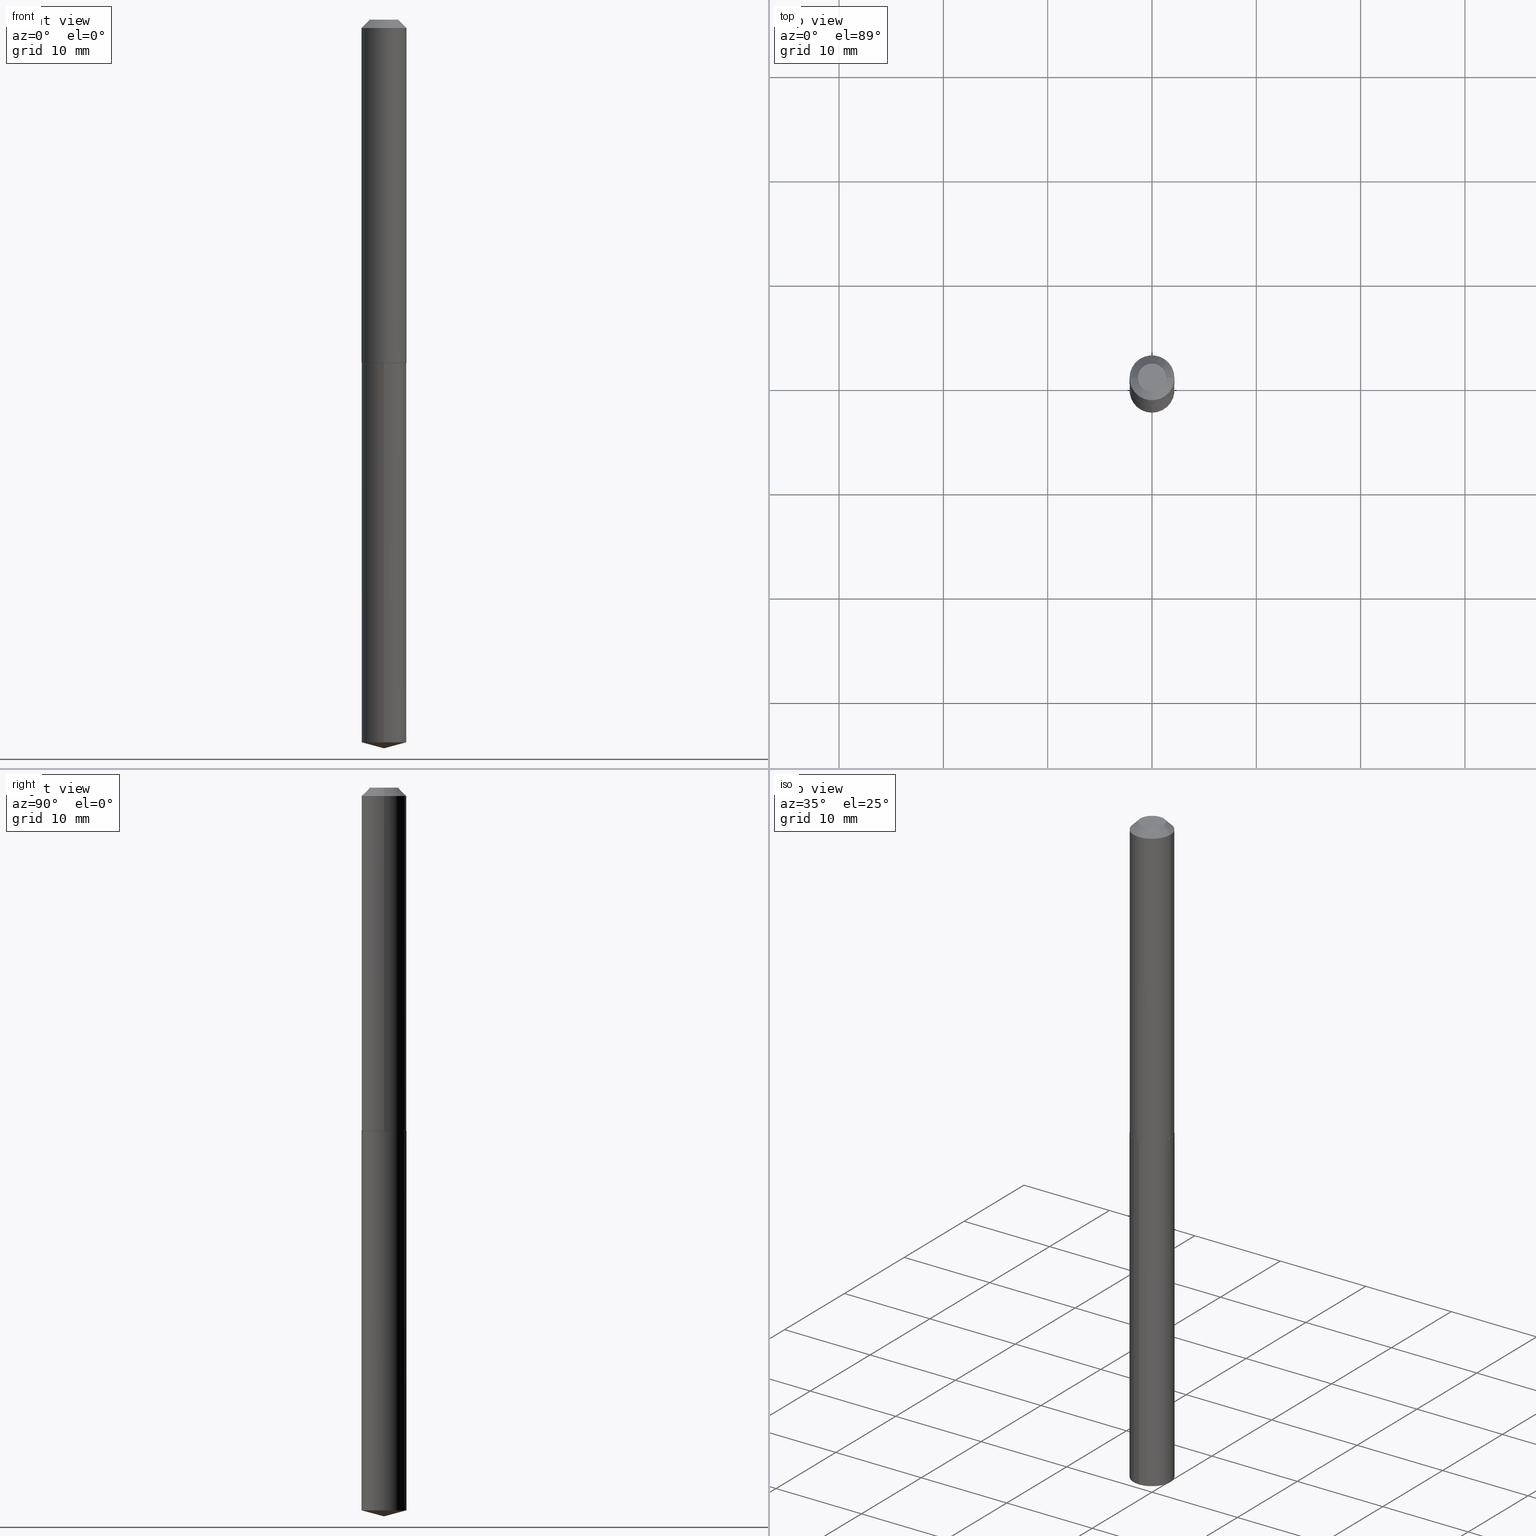
[diagram: canonical four-view strip — front | top / right | iso, engineering-drawing reading convention]
A machine part, canonical four-view strip (front | top / right | iso — engineering-drawing reading convention). The complete STEP part file that produces these views, byte-faithful:
ISO-10303-21;
HEADER;
FILE_DESCRIPTION (( 'STEP AP203' ),
    '1' );
FILE_NAME ('58033.STEP',
    '2024-04-23T00:35:15',
    ( '' ),
    ( '' ),
    'SwSTEP 2.0',
    'SolidWorks 2023',
    '' );
FILE_SCHEMA (( 'CONFIG_CONTROL_DESIGN' ));
ENDSEC;

DATA;
#1 = CC_DESIGN_PERSON_AND_ORGANIZATION_ASSIGNMENT ( #176, #214, ( #147 ) ) ;
#2 = DIRECTION ( 'NONE',  ( -2.445468806185136597E-29, 3.491481338843145583E-15, 1.000000000000000000 ) ) ;
#3 = CARTESIAN_POINT ( 'NONE',  ( 3.165659369606658777E-29, -4.519722593132451811E-15, -1.294499999999999762 ) ) ;
#4 = AXIS2_PLACEMENT_3D ( 'NONE', #139, #242, #87 ) ;
#5 = EDGE_CURVE ( 'NONE', #271, #358, #251, .T. ) ;
#6 = CARTESIAN_POINT ( 'NONE',  ( 0.08475000000000017242, -5.109782939396942105E-15, -1.293999999999999817 ) ) ;
#7 = DIRECTION ( 'NONE',  ( -2.445429915392048284E-29, 3.491537032672374464E-15, 1.000000000000000000 ) ) ;
#8 =( NAMED_UNIT ( * ) SI_UNIT ( $, .STERADIAN. ) SOLID_ANGLE_UNIT ( ) );
#9 = ORIENTED_EDGE ( 'NONE', *, *, #336, .F. ) ;
#10 = MECHANICAL_CONTEXT ( 'NONE', #376, 'mechanical' ) ;
#11 = VECTOR ( 'NONE', #77, 39.37007874015748143 ) ;
#12 = CIRCLE ( 'NONE', #330, 0.08475000000000017242 ) ;
#13 = DIRECTION ( 'NONE',  ( 1.000000000000000000, 0.000000000000000000, 0.000000000000000000 ) ) ;
#14 = AXIS2_PLACEMENT_3D ( 'NONE', #145, #59, #239 ) ;
#15 = CC_DESIGN_PERSON_AND_ORGANIZATION_ASSIGNMENT ( #277, #98, ( #362 ) ) ;
#16 = PERSON_AND_ORGANIZATION ( #373, #51 ) ;
#17 = ORIENTED_EDGE ( 'NONE', *, *, #47, .F. ) ;
#18 = DIRECTION ( 'NONE',  ( 0.000000000000000000, 0.000000000000000000, 1.000000000000000000 ) ) ;
#19 = LINE ( 'NONE', #377, #11 ) ;
#20 = DIMENSIONAL_EXPONENTS ( 1.000000000000000000, 0.000000000000000000, 0.000000000000000000, 0.000000000000000000, 0.000000000000000000, 0.000000000000000000, 0.000000000000000000 ) ;
#21 = ORIENTED_EDGE ( 'NONE', *, *, #183, .F. ) ;
#22 = PLANE ( 'NONE',  #202 ) ;
#23 = CARTESIAN_POINT ( 'NONE',  ( 3.165659369606658777E-29, -4.519722593132451811E-15, -1.294499999999999762 ) ) ;
#24 = AXIS2_PLACEMENT_3D ( 'NONE', #3, #365, #209 ) ;
#25 = ORIENTED_EDGE ( 'NONE', *, *, #217, .T. ) ;
#26 = CARTESIAN_POINT ( 'NONE',  ( 0.08425000000000019973, -5.108037198727519813E-15, -1.294499999999999540 ) ) ;
#27 = VERTEX_POINT ( 'NONE', #212 ) ;
#28 = DIRECTION ( 'NONE',  ( 1.000000000000000000, -6.982962677686266711E-15, 0.000000000000000000 ) ) ;
#29 = CARTESIAN_POINT ( 'NONE',  ( 0.000000000000000000, 0.000000000000000000, 0.000000000000000000 ) ) ;
#30 = CARTESIAN_POINT ( 'NONE',  ( -5.240962205341283824E-48, 7.482705030319651171E-34, 2.143131898507853015E-19 ) ) ;
#31 = ORIENTED_EDGE ( 'NONE', *, *, #366, .F. ) ;
#32 = ORIENTED_EDGE ( 'NONE', *, *, #47, .T. ) ;
#33 = CARTESIAN_POINT ( 'NONE',  ( -5.918060869338440545E-16, -0.08475000000000951217, -2.727291305941462074 ) ) ;
#34 = PLANE ( 'NONE',  #14 ) ;
#35 = MANIFOLD_SOLID_BREP ( 'Body-Move/Copy2[2]', #193 ) ;
#36 = DIRECTION ( 'NONE',  ( -2.445468806185136597E-29, 3.491481338843145583E-15, 1.000000000000000000 ) ) ;
#37 = CIRCLE ( 'NONE', #369, 0.08474999999999999201 ) ;
#38 = APPROVAL_STATUS ( 'not_yet_approved' ) ;
#39 = APPROVAL_ROLE ( '' ) ;
#40 = CARTESIAN_POINT ( 'NONE',  ( 3.164436635203567097E-29, -4.517976852463030307E-15, -1.293999999999999817 ) ) ;
#41 = EDGE_CURVE ( 'NONE', #85, #386, #288, .T. ) ;
#42 = AXIS2_PLACEMENT_3D ( 'NONE', #215, #249, #96 ) ;
#43 = AXIS2_PLACEMENT_3D ( 'NONE', #292, #192, #318 ) ;
#44 = PERSON_AND_ORGANIZATION ( #373, #51 ) ;
#45 = SHAPE_DEFINITION_REPRESENTATION ( #381, #187 ) ;
#46 = DIRECTION ( 'NONE',  ( -6.982962677686265922E-15, -1.000000000000000000, 6.446838923101506686E-15 ) ) ;
#47 = EDGE_CURVE ( 'NONE', #382, #27, #116, .T. ) ;
#48 = ADVANCED_FACE ( 'NONE', ( #322 ), #125, .T. ) ;
#49 = LINE ( 'NONE', #317, #305 ) ;
#50 = VECTOR ( 'NONE', #291, 39.37007874015748143 ) ;
#51 = ORGANIZATION ( 'UNSPECIFIED', 'UNSPECIFIED', '' ) ;
#52 = CYLINDRICAL_SURFACE ( 'NONE', #342, 0.08474999999999999201 ) ;
#53 = DIRECTION ( 'NONE',  ( -2.445468806185136597E-29, 3.491481338843145583E-15, 1.000000000000000000 ) ) ;
#54 = EDGE_LOOP ( 'NONE', ( #235, #108, #107, #169 ) ) ;
#55 = APPROVAL ( #38, 'UNSPECIFIED' ) ;
#56 = ADVANCED_FACE ( 'NONE', ( #357 ), #240, .T. ) ;
#57 = ORIENTED_EDGE ( 'NONE', *, *, #217, .F. ) ;
#58 = EDGE_CURVE ( 'NONE', #161, #271, #329, .T. ) ;
#59 = DIRECTION ( 'NONE',  ( 2.438088387897960049E-29, -3.491481338843145188E-15, -1.000000000000000000 ) ) ;
#60 = EDGE_LOOP ( 'NONE', ( #361, #379, #117, #21 ) ) ;
#61 = FACE_OUTER_BOUND ( 'NONE', #150, .T. ) ;
#62 = DIRECTION ( 'NONE',  ( -2.445429915392048284E-29, 3.491537032672374464E-15, 1.000000000000000000 ) ) ;
#63 = AXIS2_PLACEMENT_3D ( 'NONE', #68, #177, #276 ) ;
#64 = DIRECTION ( 'NONE',  ( 1.000000000000000000, -6.982962677686265922E-15, 4.876188278482911782E-29 ) ) ;
#65 = ORIENTED_EDGE ( 'NONE', *, *, #303, .F. ) ;
#66 = ORIENTED_EDGE ( 'NONE', *, *, #190, .F. ) ;
#67 = EDGE_CURVE ( 'NONE', #271, #88, #231, .T. ) ;
#68 = CARTESIAN_POINT ( 'NONE',  ( 6.669450091669553743E-29, -9.522366497918082470E-15, -2.727291305941462962 ) ) ;
#69 = AXIS2_PLACEMENT_3D ( 'NONE', #179, #73, #310 ) ;
#70 = APPLICATION_PROTOCOL_DEFINITION ( 'international standard', 'config_control_design', 1994, #376 ) ;
#71 = ORIENTED_EDGE ( 'NONE', *, *, #299, .F. ) ;
#72 = APPROVAL_DATE_TIME ( #340, #55 ) ;
#73 = DIRECTION ( 'NONE',  ( 2.445468806185136597E-29, -3.491481338843145583E-15, -1.000000000000000000 ) ) ;
#74 = LOCAL_TIME ( 20, 35, 15.00000000000000000, #218 ) ;
#75 = DATE_AND_TIME ( #341, #337 ) ;
#76 = EDGE_CURVE ( 'NONE', #88, #309, #123, .T. ) ;
#77 = DIRECTION ( 'NONE',  ( 0.7071067811867889352, -2.468850131084785360E-15, 0.7071067811863060992 ) ) ;
#78 = ORIENTED_EDGE ( 'NONE', *, *, #280, .T. ) ;
#79 = CARTESIAN_POINT ( 'NONE',  ( 3.165659369606658217E-29, -4.519722593132450233E-15, -1.294499999999999540 ) ) ;
#80 = VECTOR ( 'NONE', #364, 39.37007874015748854 ) ;
#81 = DIRECTION ( 'NONE',  ( -6.982962677686265922E-15, -1.000000000000000000, 3.223419461550753343E-15 ) ) ;
#82 = EDGE_CURVE ( 'NONE', #258, #265, #375, .T. ) ;
#83 = LINE ( 'NONE', #196, #133 ) ;
#84 = CONICAL_SURFACE ( 'NONE', #42, 0.08474999999999999201, 0.7853981633974450594 ) ;
#85 = VERTEX_POINT ( 'NONE', #205 ) ;
#86 = CYLINDRICAL_SURFACE ( 'NONE', #154, 0.08474999999999999201 ) ;
#87 = DIRECTION ( 'NONE',  ( 1.000000000000000000, -6.982962677686267499E-15, 0.000000000000000000 ) ) ;
#88 = VERTEX_POINT ( 'NONE', #33 ) ;
#89 = FACE_OUTER_BOUND ( 'NONE', #270, .T. ) ;
#90 = DIRECTION ( 'NONE',  ( -2.445468806185136597E-29, 3.491481338843145583E-15, 1.000000000000000000 ) ) ;
#91 = ORIENTED_EDGE ( 'NONE', *, *, #76, .T. ) ;
#92 = DIRECTION ( 'NONE',  ( -6.982962677686265922E-15, -1.000000000000000000, 3.223419461550753343E-15 ) ) ;
#93 = ADVANCED_FACE ( 'NONE', ( #144 ), #273, .F. ) ;
#94 = ORIENTED_EDGE ( 'NONE', *, *, #76, .F. ) ;
#95 =( LENGTH_UNIT ( ) NAMED_UNIT ( * ) SI_UNIT ( $, .METRE. ) );
#96 = DIRECTION ( 'NONE',  ( -1.000000000000000000, 6.982962677686267499E-15, 0.000000000000000000 ) ) ;
#97 = AXIS2_PLACEMENT_3D ( 'NONE', #352, #129, #167 ) ;
#98 = PERSON_AND_ORGANIZATION_ROLE ( 'creator' ) ;
#99 = PERSON_AND_ORGANIZATION_ROLE ( 'classification_officer' ) ;
#100 = DIRECTION ( 'NONE',  ( 1.000000000000000000, -6.982962677686264344E-15, 0.000000000000000000 ) ) ;
#101 = CALENDAR_DATE ( 2024, 22, 4 ) ;
#102 =( GEOMETRIC_REPRESENTATION_CONTEXT ( 3 ) GLOBAL_UNCERTAINTY_ASSIGNED_CONTEXT ( ( #155 ) ) GLOBAL_UNIT_ASSIGNED_CONTEXT ( ( #388, #253, #8 ) ) REPRESENTATION_CONTEXT ( 'NONE', 'WORKASPACE' ) );
#103 = ORIENTED_EDGE ( 'NONE', *, *, #366, .T. ) ;
#104 = VECTOR ( 'NONE', #237, 39.37007874015748143 ) ;
#105 = ADVANCED_FACE ( 'NONE', ( #387 ), #84, .T. ) ;
#106 = CC_DESIGN_SECURITY_CLASSIFICATION ( #131, ( #147 ) ) ;
#107 = ORIENTED_EDGE ( 'NONE', *, *, #183, .T. ) ;
#108 = ORIENTED_EDGE ( 'NONE', *, *, #82, .T. ) ;
#109 = DIRECTION ( 'NONE',  ( -2.445429915392048284E-29, 3.491537032672374464E-15, 1.000000000000000000 ) ) ;
#110 = ADVANCED_FACE ( 'NONE', ( #338 ), #197, .T. ) ;
#111 = ORIENTED_EDGE ( 'NONE', *, *, #67, .T. ) ;
#112 = CARTESIAN_POINT ( 'NONE',  ( 0.08475000000000008915, -5.918060869339116993E-16, 4.132559817487059256E-30 ) ) ;
#113 = APPROVAL_PERSON_ORGANIZATION ( #16, #293, #372 ) ;
#114 = VERTEX_POINT ( 'NONE', #283 ) ;
#115 = DIRECTION ( 'NONE',  ( 1.000000000000000000, -6.982962677686266711E-15, 0.000000000000000000 ) ) ;
#116 = LINE ( 'NONE', #353, #254 ) ;
#117 = ORIENTED_EDGE ( 'NONE', *, *, #120, .F. ) ;
#118 = CARTESIAN_POINT ( 'NONE',  ( 6.021849685567515095E-16, 0.08474999999999043021, -2.727291305941463406 ) ) ;
#119 = ORIENTED_EDGE ( 'NONE', *, *, #120, .T. ) ;
#120 = EDGE_CURVE ( 'NONE', #386, #85, #12, .T. ) ;
#121 = AXIS2_PLACEMENT_3D ( 'NONE', #162, #109, #46 ) ;
#122 = DIRECTION ( 'NONE',  ( -2.445468806185136597E-29, 3.491481338843145583E-15, 1.000000000000000000 ) ) ;
#123 = LINE ( 'NONE', #211, #104 ) ;
#124 = EDGE_CURVE ( 'NONE', #88, #271, #297, .T. ) ;
#125 = CONICAL_SURFACE ( 'NONE', #248, 0.08475000000000017242, 0.7853981633977896726 ) ;
#126 = APPLICATION_PROTOCOL_DEFINITION ( 'international standard', 'config_control_design', 1994, #208 ) ;
#127 = DATE_TIME_ROLE ( 'creation_date' ) ;
#128 = ORIENTED_EDGE ( 'NONE', *, *, #336, .T. ) ;
#129 = DIRECTION ( 'NONE',  ( -2.445468806185136597E-29, 3.491481338843145583E-15, 1.000000000000000000 ) ) ;
#130 = VECTOR ( 'NONE', #7, 39.37007874015748143 ) ;
#131 = SECURITY_CLASSIFICATION ( '', '', #311 ) ;
#132 = VERTEX_POINT ( 'NONE', #225 ) ;
#133 = VECTOR ( 'NONE', #316, 39.37007874015748143 ) ;
#134 = CIRCLE ( 'NONE', #275, 0.05349999999999999895 ) ;
#135 = ORIENTED_EDGE ( 'NONE', *, *, #5, .T. ) ;
#136 = LENGTH_MEASURE_WITH_UNIT ( LENGTH_MEASURE( 0.02539999999999999897 ), #95 );
#137 = DIRECTION ( 'NONE',  ( -2.445429915392048284E-29, 3.491537032672374464E-15, 1.000000000000000000 ) ) ;
#138 = EDGE_LOOP ( 'NONE', ( #181, #320, #290 ) ) ;
#139 = CARTESIAN_POINT ( 'NONE',  ( 7.642090019328600035E-31, -1.091087918388489897E-16, -0.03125000000000020123 ) ) ;
#140 = CARTESIAN_POINT ( 'NONE',  ( 6.725033838508654818E-29, -9.601582648525155543E-15, -2.750000000000000000 ) ) ;
#141 = CARTESIAN_POINT ( 'NONE',  ( 3.165659369606658217E-29, -4.519722593132450233E-15, -1.294499999999999540 ) ) ;
#142 = CC_DESIGN_DATE_AND_TIME_ASSIGNMENT ( #368, #127, ( #362 ) ) ;
#143 = CARTESIAN_POINT ( 'NONE',  ( -5.918060869338793560E-16, -0.08475000000000451617, -1.294499999999999540 ) ) ;
#144 = FACE_OUTER_BOUND ( 'NONE', #390, .T. ) ;
#145 = CARTESIAN_POINT ( 'NONE',  ( -2.620481102670641912E-48, 3.741352515159825585E-34, 1.071565949253926508E-19 ) ) ;
#146 = CLOSED_SHELL ( 'NONE', ( #175, #221, #191, #268, #93 ) ) ;
#147 = PRODUCT_DEFINITION_FORMATION_WITH_SPECIFIED_SOURCE ( 'ANY', '', #284, .NOT_KNOWN. ) ;
#148 = EDGE_CURVE ( 'NONE', #161, #88, #49, .T. ) ;
#149 = CALENDAR_DATE ( 2024, 22, 4 ) ;
#150 = EDGE_LOOP ( 'NONE', ( #333, #111, #91, #164 ) ) ;
#151 = DATE_AND_TIME ( #101, #165 ) ;
#152 = DIRECTION ( 'NONE',  ( -2.445468806185136597E-29, 3.491481338843145583E-15, 1.000000000000000000 ) ) ;
#153 = PERSON_AND_ORGANIZATION ( #373, #51 ) ;
#154 = AXIS2_PLACEMENT_3D ( 'NONE', #302, #62, #92 ) ;
#155 = UNCERTAINTY_MEASURE_WITH_UNIT (LENGTH_MEASURE( 1.000000000000000082E-05 ), #388, 'distance_accuracy_value', 'NONE');
#156 = DATE_AND_TIME ( #149, #306 ) ;
#157 = CARTESIAN_POINT ( 'NONE',  ( -0.08425000000000019973, -3.918441111080454291E-15, -1.294499999999999540 ) ) ;
#158 = AXIS2_PLACEMENT_3D ( 'NONE', #346, #189, #256 ) ;
#159 = APPROVAL_PERSON_ORGANIZATION ( #44, #55, #334 ) ;
#160 = LINE ( 'NONE', #195, #50 ) ;
#161 = VERTEX_POINT ( 'NONE', #260 ) ;
#162 = CARTESIAN_POINT ( 'NONE',  ( 6.669450091669553743E-29, -9.522366497918082470E-15, -2.727291305941462962 ) ) ;
#163 = DIRECTION ( 'NONE',  ( 1.000000000000000000, -6.982962677686264344E-15, 0.000000000000000000 ) ) ;
#164 = ORIENTED_EDGE ( 'NONE', *, *, #363, .F. ) ;
#165 = LOCAL_TIME ( 20, 35, 15.00000000000000000, #367 ) ;
#166 = ORIENTED_EDGE ( 'NONE', *, *, #335, .T. ) ;
#167 = DIRECTION ( 'NONE',  ( 1.000000000000000000, -6.982962677686264344E-15, 0.000000000000000000 ) ) ;
#168 = DIRECTION ( 'NONE',  ( 0.7071067811865452413, -7.319954787623248157E-15, -0.7071067811865497932 ) ) ;
#169 = ORIENTED_EDGE ( 'NONE', *, *, #41, .F. ) ;
#170 = AXIS2_PLACEMENT_3D ( 'NONE', #360, #90, #201 ) ;
#171 = DIRECTION ( 'NONE',  ( -2.445468806185136597E-29, 3.491481338843145583E-15, 1.000000000000000000 ) ) ;
#172 = CARTESIAN_POINT ( 'NONE',  ( 3.164436635203567097E-29, -4.517976852463030307E-15, -1.293999999999999817 ) ) ;
#173 = CIRCLE ( 'NONE', #198, 0.05349999999999999895 ) ;
#174 = LINE ( 'NONE', #112, #257 ) ;
#175 = ADVANCED_FACE ( 'NONE', ( #348 ), #52, .T. ) ;
#176 = PERSON_AND_ORGANIZATION ( #373, #51 ) ;
#177 = DIRECTION ( 'NONE',  ( -2.445429915392048284E-29, 3.491537032672374464E-15, 1.000000000000000000 ) ) ;
#178 = AXIS2_PLACEMENT_3D ( 'NONE', #23, #385, #81 ) ;
#179 = CARTESIAN_POINT ( 'NONE',  ( 7.642090019328600035E-31, -1.091087918388489897E-16, -0.03125000000000020123 ) ) ;
#180 = PERSON_AND_ORGANIZATION_ROLE ( 'creator' ) ;
#181 = ORIENTED_EDGE ( 'NONE', *, *, #58, .F. ) ;
#182 = APPROVAL_STATUS ( 'not_yet_approved' ) ;
#183 = EDGE_CURVE ( 'NONE', #265, #386, #19, .T. ) ;
#184 = ADVANCED_FACE ( 'NONE', ( #289 ), #22, .F. ) ;
#185 = COORDINATED_UNIVERSAL_TIME_OFFSET ( 5, 0, .BEHIND. ) ;
#186 = CARTESIAN_POINT ( 'NONE',  ( 3.165659369606658777E-29, -4.519722593132451811E-15, -1.294499999999999762 ) ) ;
#187 = ADVANCED_BREP_SHAPE_REPRESENTATION ( '58033', ( #286, #35, #326 ), #102 ) ;
#188 = ORIENTED_EDGE ( 'NONE', *, *, #82, .F. ) ;
#189 = DIRECTION ( 'NONE',  ( -2.445429915392048284E-29, 3.491537032672374464E-15, 1.000000000000000000 ) ) ;
#190 = EDGE_CURVE ( 'NONE', #309, #358, #354, .T. ) ;
#191 = ADVANCED_FACE ( 'NONE', ( #226 ), #313, .T. ) ;
#192 = DIRECTION ( 'NONE',  ( -2.445429915392048284E-29, 3.491537032672374464E-15, 1.000000000000000000 ) ) ;
#193 = CLOSED_SHELL ( 'NONE', ( #105, #56, #267, #184, #48, #378, #110, #325 ) ) ;
#194 = CIRCLE ( 'NONE', #383, 0.08474999999999999201 ) ;
#195 = CARTESIAN_POINT ( 'NONE',  ( -0.08475000000000008915, 6.021849685566855410E-16, -4.168797488991036477E-30 ) ) ;
#196 = CARTESIAN_POINT ( 'NONE',  ( -0.08475000000000017242, -3.915791883906343879E-15, -1.293999999999999817 ) ) ;
#197 = CONICAL_SURFACE ( 'NONE', #69, 0.08474999999999999201, 0.7853981633974450594 ) ;
#198 = AXIS2_PLACEMENT_3D ( 'NONE', #274, #301, #300 ) ;
#199 = CYLINDRICAL_SURFACE ( 'NONE', #220, 0.08475000000000008915 ) ;
#200 = LINE ( 'NONE', #327, #232 ) ;
#201 = DIRECTION ( 'NONE',  ( 1.000000000000000000, -6.982962677686266711E-15, 4.876176775795935232E-29 ) ) ;
#202 = AXIS2_PLACEMENT_3D ( 'NONE', #79, #296, #380 ) ;
#203 = DIRECTION ( 'NONE',  ( 1.000000000000000000, -6.982962677686267499E-15, 0.000000000000000000 ) ) ;
#204 = CIRCLE ( 'NONE', #261, 0.08425000000000019973 ) ;
#205 = CARTESIAN_POINT ( 'NONE',  ( -0.08475000000000017242, -3.915791883906343879E-15, -1.293999999999999817 ) ) ;
#206 = CARTESIAN_POINT ( 'NONE',  ( -0.05349999999999999895, 4.281428991756386893E-16, 2.143131898479821105E-19 ) ) ;
#207 = EDGE_LOOP ( 'NONE', ( #219, #389, #32, #78 ) ) ;
#208 = APPLICATION_CONTEXT ( 'configuration controlled 3d designs of mechanical parts and assemblies' ) ;
#209 = DIRECTION ( 'NONE',  ( 6.982962677686265922E-15, 1.000000000000000000, -3.491537032672374464E-15 ) ) ;
#210 = APPROVAL_STATUS ( 'not_yet_approved' ) ;
#211 = CARTESIAN_POINT ( 'NONE',  ( -5.918060869338793560E-16, -0.08475000000000451617, -1.294499999999999540 ) ) ;
#212 = CARTESIAN_POINT ( 'NONE',  ( -0.08474999999999999201, -1.711357853594253473E-15, -0.03125000000000020123 ) ) ;
#213 = CC_DESIGN_APPROVAL ( #55, ( #147 ) ) ;
#214 = PERSON_AND_ORGANIZATION_ROLE ( 'design_supplier' ) ;
#215 = CARTESIAN_POINT ( 'NONE',  ( 7.642090019328600035E-31, -1.091087918388489897E-16, -0.03125000000000020123 ) ) ;
#216 = COORDINATED_UNIVERSAL_TIME_OFFSET ( 5, 0, .BEHIND. ) ;
#217 = EDGE_CURVE ( 'NONE', #85, #27, #160, .T. ) ;
#218 = COORDINATED_UNIVERSAL_TIME_OFFSET ( 5, 0, .BEHIND. ) ;
#219 = ORIENTED_EDGE ( 'NONE', *, *, #294, .F. ) ;
#220 = AXIS2_PLACEMENT_3D ( 'NONE', #29, #2, #356 ) ;
#221 = ADVANCED_FACE ( 'NONE', ( #321 ), #331, .T. ) ;
#222 = ORIENTED_EDGE ( 'NONE', *, *, #190, .T. ) ;
#223 = DIRECTION ( 'NONE',  ( -6.745023994389847021E-15, -0.9659258262890687563, 0.2588190451025186856 ) ) ;
#224 = DIRECTION ( 'NONE',  ( -2.445429915392048284E-29, 3.491537032672374464E-15, 1.000000000000000000 ) ) ;
#225 = CARTESIAN_POINT ( 'NONE',  ( 0.08474999999999999201, -7.009148787727601097E-16, -0.03125000000000020123 ) ) ;
#226 = FACE_OUTER_BOUND ( 'NONE', #138, .T. ) ;
#227 = CC_DESIGN_PERSON_AND_ORGANIZATION_ASSIGNMENT ( #374, #180, ( #147 ) ) ;
#228 = ORIENTED_EDGE ( 'NONE', *, *, #299, .T. ) ;
#229 = FACE_OUTER_BOUND ( 'NONE', #60, .T. ) ;
#230 = EDGE_LOOP ( 'NONE', ( #259, #135, #66, #94 ) ) ;
#231 = CIRCLE ( 'NONE', #63, 0.08474999999999999201 ) ;
#232 = VECTOR ( 'NONE', #168, 39.37007874015748143 ) ;
#233 = DIRECTION ( 'NONE',  ( -2.445468806185136597E-29, 3.491481338843145583E-15, 1.000000000000000000 ) ) ;
#234 = DIRECTION ( 'NONE',  ( -0.7071067811865452413, 2.468850131082233000E-15, -0.7071067811865497932 ) ) ;
#235 = ORIENTED_EDGE ( 'NONE', *, *, #236, .F. ) ;
#236 = EDGE_CURVE ( 'NONE', #258, #85, #83, .T. ) ;
#237 = DIRECTION ( 'NONE',  ( -2.445429915392048284E-29, 3.491537032672374464E-15, 1.000000000000000000 ) ) ;
#238 = CC_DESIGN_PERSON_AND_ORGANIZATION_ASSIGNMENT ( #153, #287, ( #284 ) ) ;
#239 = DIRECTION ( 'NONE',  ( -1.000000000000000000, 6.982962677686265922E-15, -4.876176775795935793E-29 ) ) ;
#240 = CYLINDRICAL_SURFACE ( 'NONE', #170, 0.08475000000000008915 ) ;
#241 = ORIENTED_EDGE ( 'NONE', *, *, #124, .F. ) ;
#242 = DIRECTION ( 'NONE',  ( -2.445468806185136597E-29, 3.491481338843145583E-15, 1.000000000000000000 ) ) ;
#243 = DIRECTION ( 'NONE',  ( -2.445468806185136597E-29, 3.491481338843145583E-15, 1.000000000000000000 ) ) ;
#244 = CARTESIAN_POINT ( 'NONE',  ( 7.642090019328600035E-31, -1.091087918388489897E-16, -0.03125000000000020123 ) ) ;
#245 = CIRCLE ( 'NONE', #4, 0.08474999999999999201 ) ;
#246 = EDGE_LOOP ( 'NONE', ( #166, #128 ) ) ;
#247 = APPROVAL_DATE_TIME ( #151, #308 ) ;
#248 = AXIS2_PLACEMENT_3D ( 'NONE', #172, #53, #163 ) ;
#249 = DIRECTION ( 'NONE',  ( 2.445468806185136597E-29, -3.491481338843145583E-15, -1.000000000000000000 ) ) ;
#250 = COORDINATED_UNIVERSAL_TIME_OFFSET ( 5, 0, .BEHIND. ) ;
#251 = LINE ( 'NONE', #371, #130 ) ;
#252 = CARTESIAN_POINT ( 'NONE',  ( 3.164436635203567097E-29, -4.517976852463030307E-15, -1.293999999999999817 ) ) ;
#253 =( NAMED_UNIT ( * ) PLANE_ANGLE_UNIT ( ) SI_UNIT ( $, .RADIAN. ) );
#254 = VECTOR ( 'NONE', #234, 39.37007874015748143 ) ;
#255 = ORIENTED_EDGE ( 'NONE', *, *, #148, .F. ) ;
#256 = DIRECTION ( 'NONE',  ( -6.982962677686265922E-15, -1.000000000000000000, 3.510303681827561547E-15 ) ) ;
#257 = VECTOR ( 'NONE', #272, 39.37007874015748143 ) ;
#258 = VERTEX_POINT ( 'NONE', #157 ) ;
#259 = ORIENTED_EDGE ( 'NONE', *, *, #124, .T. ) ;
#260 = CARTESIAN_POINT ( 'NONE',  ( 6.724932267328132149E-29, -9.601726839849029086E-15, -2.750000000000000000 ) ) ;
#261 = AXIS2_PLACEMENT_3D ( 'NONE', #332, #233, #115 ) ;
#262 = PRODUCT_RELATED_PRODUCT_CATEGORY ( 'detail', '', ( #284 ) ) ;
#263 = EDGE_LOOP ( 'NONE', ( #119, #25, #71, #31 ) ) ;
#264 = DIRECTION ( 'NONE',  ( -6.982962677686265922E-15, -1.000000000000000000, 3.223419461550753343E-15 ) ) ;
#265 = VERTEX_POINT ( 'NONE', #26 ) ;
#266 = CARTESIAN_POINT ( 'NONE',  ( 3.165659369606658777E-29, -4.519722593132451811E-15, -1.294499999999999762 ) ) ;
#267 = ADVANCED_FACE ( 'NONE', ( #229 ), #343, .T. ) ;
#268 = ADVANCED_FACE ( 'NONE', ( #61 ), #86, .T. ) ;
#269 = DIRECTION ( 'NONE',  ( -6.982962677686265922E-15, -1.000000000000000000, 3.223419461550753343E-15 ) ) ;
#270 = EDGE_LOOP ( 'NONE', ( #57, #384, #103, #295 ) ) ;
#271 = VERTEX_POINT ( 'NONE', #118 ) ;
#272 = DIRECTION ( 'NONE',  ( -2.445468806185136877E-29, 3.491481338843145188E-15, 1.000000000000000000 ) ) ;
#273 = PLANE ( 'NONE',  #24 ) ;
#274 = CARTESIAN_POINT ( 'NONE',  ( -5.240962205341283824E-48, 7.482705030319651171E-34, 2.143131898507853015E-19 ) ) ;
#275 = AXIS2_PLACEMENT_3D ( 'NONE', #30, #122, #64 ) ;
#276 = DIRECTION ( 'NONE',  ( -6.982962677686265922E-15, -1.000000000000000000, 6.446838923101506686E-15 ) ) ;
#277 = PERSON_AND_ORGANIZATION ( #373, #51 ) ;
#278 = DIRECTION ( 'NONE',  ( 1.000000000000000000, -6.982962677686264344E-15, 0.000000000000000000 ) ) ;
#279 = CC_DESIGN_PERSON_AND_ORGANIZATION_ASSIGNMENT ( #370, #99, ( #131 ) ) ;
#280 = EDGE_CURVE ( 'NONE', #27, #132, #245, .T. ) ;
#281 = CALENDAR_DATE ( 2024, 22, 4 ) ;
#282 = AXIS2_PLACEMENT_3D ( 'NONE', #40, #152, #278 ) ;
#283 = CARTESIAN_POINT ( 'NONE',  ( 0.05349999999999999895, -5.287863200153815370E-16, 2.143131898539398544E-19 ) ) ;
#284 = PRODUCT ( '58033', '58033', '', ( #10 ) ) ;
#285 = DATE_TIME_ROLE ( 'classification_date' ) ;
#286 = MANIFOLD_SOLID_BREP ( 'Body-Move/Copy2[1]', #146 ) ;
#287 = PERSON_AND_ORGANIZATION_ROLE ( 'design_owner' ) ;
#288 = CIRCLE ( 'NONE', #282, 0.08475000000000017242 ) ;
#289 = FACE_OUTER_BOUND ( 'NONE', #304, .T. ) ;
#290 = ORIENTED_EDGE ( 'NONE', *, *, #67, .F. ) ;
#291 = DIRECTION ( 'NONE',  ( -2.445468806185136877E-29, 3.491481338843145188E-15, 1.000000000000000000 ) ) ;
#292 = CARTESIAN_POINT ( 'NONE',  ( -8.955178571106180441E-28, 1.278604331563000924E-13, 36.62007874015748143 ) ) ;
#293 = APPROVAL ( #210, 'UNSPECIFIED' ) ;
#294 = EDGE_CURVE ( 'NONE', #114, #132, #200, .T. ) ;
#295 = ORIENTED_EDGE ( 'NONE', *, *, #280, .F. ) ;
#296 = DIRECTION ( 'NONE',  ( -2.438088387897960049E-29, 3.491481338843145188E-15, 1.000000000000000000 ) ) ;
#297 = CIRCLE ( 'NONE', #121, 0.08474999999999999201 ) ;
#298 = DESIGN_CONTEXT ( 'detailed design', #208, 'design' ) ;
#299 = EDGE_CURVE ( 'NONE', #132, #27, #194, .T. ) ;
#300 = DIRECTION ( 'NONE',  ( 1.000000000000000000, -6.982962677686265922E-15, 4.876188278482911782E-29 ) ) ;
#301 = DIRECTION ( 'NONE',  ( -2.445468806185136597E-29, 3.491481338843145583E-15, 1.000000000000000000 ) ) ;
#302 = CARTESIAN_POINT ( 'NONE',  ( 3.165659369606658777E-29, -4.519722593132451811E-15, -1.294499999999999762 ) ) ;
#303 = EDGE_CURVE ( 'NONE', #265, #258, #204, .T. ) ;
#304 = EDGE_LOOP ( 'NONE', ( #65, #188 ) ) ;
#305 = VECTOR ( 'NONE', #223, 39.37007874015748854 ) ;
#306 = LOCAL_TIME ( 20, 35, 15.00000000000000000, #216 ) ;
#307 = CARTESIAN_POINT ( 'NONE',  ( 0.000000000000000000, 0.000000000000000000, 0.000000000000000000 ) ) ;
#308 = APPROVAL ( #182, 'UNSPECIFIED' ) ;
#309 = VERTEX_POINT ( 'NONE', #143 ) ;
#310 = DIRECTION ( 'NONE',  ( -1.000000000000000000, 6.982962677686267499E-15, 0.000000000000000000 ) ) ;
#311 = SECURITY_CLASSIFICATION_LEVEL ( 'unclassified' ) ;
#312 = CALENDAR_DATE ( 2024, 22, 4 ) ;
#313 = CONICAL_SURFACE ( 'NONE', #158, 146.9311341562583095, 1.308996938995752757 ) ;
#314 = LOCAL_TIME ( 20, 35, 15.00000000000000000, #250 ) ;
#315 = APPROVAL_DATE_TIME ( #75, #293 ) ;
#316 = DIRECTION ( 'NONE',  ( -0.7071067811867889352, 7.493145998871226640E-15, 0.7071067811863060992 ) ) ;
#317 = CARTESIAN_POINT ( 'NONE',  ( 6.724932267328133270E-29, -9.601726839849030664E-15, -2.750000000000000000 ) ) ;
#318 = DIRECTION ( 'NONE',  ( -6.982962677686265922E-15, -1.000000000000000000, 3.510303681827561547E-15 ) ) ;
#319 = APPROVAL_PERSON_ORGANIZATION ( #339, #308, #39 ) ;
#320 = ORIENTED_EDGE ( 'NONE', *, *, #148, .T. ) ;
#321 = FACE_OUTER_BOUND ( 'NONE', #350, .T. ) ;
#322 = FACE_OUTER_BOUND ( 'NONE', #54, .T. ) ;
#323 = EDGE_LOOP ( 'NONE', ( #9, #345, #228, #17 ) ) ;
#324 = ORIENTED_EDGE ( 'NONE', *, *, #363, .T. ) ;
#325 = ADVANCED_FACE ( 'NONE', ( #328 ), #34, .F. ) ;
#326 = AXIS2_PLACEMENT_3D ( 'NONE', #307, #18, #13 ) ;
#327 = CARTESIAN_POINT ( 'NONE',  ( 0.08474999999999999201, -6.905359971499861694E-16, -0.03125000000000020123 ) ) ;
#328 = FACE_OUTER_BOUND ( 'NONE', #246, .T. ) ;
#329 = LINE ( 'NONE', #140, #80 ) ;
#330 = AXIS2_PLACEMENT_3D ( 'NONE', #252, #36, #100 ) ;
#331 = CONICAL_SURFACE ( 'NONE', #43, 146.9311341562583095, 1.308996938995752757 ) ;
#332 = CARTESIAN_POINT ( 'NONE',  ( 3.165659369606658217E-29, -4.519722593132450233E-15, -1.294499999999999540 ) ) ;
#333 = ORIENTED_EDGE ( 'NONE', *, *, #5, .F. ) ;
#334 = APPROVAL_ROLE ( '' ) ;
#335 = EDGE_CURVE ( 'NONE', #382, #114, #173, .T. ) ;
#336 = EDGE_CURVE ( 'NONE', #114, #382, #134, .T. ) ;
#337 = LOCAL_TIME ( 20, 35, 15.00000000000000000, #185 ) ;
#338 = FACE_OUTER_BOUND ( 'NONE', #207, .T. ) ;
#339 = PERSON_AND_ORGANIZATION ( #373, #51 ) ;
#340 = DATE_AND_TIME ( #312, #74 ) ;
#341 = CALENDAR_DATE ( 2024, 22, 4 ) ;
#342 = AXIS2_PLACEMENT_3D ( 'NONE', #186, #224, #264 ) ;
#343 = CONICAL_SURFACE ( 'NONE', #97, 0.08475000000000017242, 0.7853981633977896726 ) ;
#344 = CC_DESIGN_DATE_AND_TIME_ASSIGNMENT ( #156, #285, ( #131 ) ) ;
#345 = ORIENTED_EDGE ( 'NONE', *, *, #294, .T. ) ;
#346 = CARTESIAN_POINT ( 'NONE',  ( -8.955178571106180441E-28, 1.278604331563000924E-13, 36.62007874015748143 ) ) ;
#347 = AXIS2_PLACEMENT_3D ( 'NONE', #141, #243, #28 ) ;
#348 = FACE_OUTER_BOUND ( 'NONE', #230, .T. ) ;
#349 = CC_DESIGN_APPROVAL ( #293, ( #131 ) ) ;
#350 = EDGE_LOOP ( 'NONE', ( #255, #351, #241 ) ) ;
#351 = ORIENTED_EDGE ( 'NONE', *, *, #58, .T. ) ;
#352 = CARTESIAN_POINT ( 'NONE',  ( 3.164436635203567097E-29, -4.517976852463030307E-15, -1.293999999999999817 ) ) ;
#353 = CARTESIAN_POINT ( 'NONE',  ( -0.08474999999999999201, 4.826972950950621056E-16, -0.03125000000000020123 ) ) ;
#354 = CIRCLE ( 'NONE', #178, 0.08474999999999999201 ) ;
#355 = CC_DESIGN_APPROVAL ( #308, ( #362 ) ) ;
#356 = DIRECTION ( 'NONE',  ( 1.000000000000000000, -6.982962677686266711E-15, 4.876176775795935232E-29 ) ) ;
#357 = FACE_OUTER_BOUND ( 'NONE', #263, .T. ) ;
#358 = VERTEX_POINT ( 'NONE', #359 ) ;
#359 = CARTESIAN_POINT ( 'NONE',  ( 6.021849685567517067E-16, 0.08474999999999546785, -1.294499999999999984 ) ) ;
#360 = CARTESIAN_POINT ( 'NONE',  ( 0.000000000000000000, 0.000000000000000000, 0.000000000000000000 ) ) ;
#361 = ORIENTED_EDGE ( 'NONE', *, *, #303, .T. ) ;
#362 = PRODUCT_DEFINITION ( 'UNKNOWN', '', #147, #298 ) ;
#363 = EDGE_CURVE ( 'NONE', #358, #309, #37, .T. ) ;
#364 = DIRECTION ( 'NONE',  ( 6.863315791527700570E-15, 0.9659258262890705327, 0.2588190451025119132 ) ) ;
#365 = DIRECTION ( 'NONE',  ( 2.445429915392048003E-29, -3.491537032672374464E-15, -1.000000000000000000 ) ) ;
#366 = EDGE_CURVE ( 'NONE', #386, #132, #174, .T. ) ;
#367 = COORDINATED_UNIVERSAL_TIME_OFFSET ( 5, 0, .BEHIND. ) ;
#368 = DATE_AND_TIME ( #281, #314 ) ;
#369 = AXIS2_PLACEMENT_3D ( 'NONE', #266, #137, #269 ) ;
#370 = PERSON_AND_ORGANIZATION ( #373, #51 ) ;
#371 = CARTESIAN_POINT ( 'NONE',  ( 6.021849685567164052E-16, 0.08474999999999546785, -1.294499999999999984 ) ) ;
#372 = APPROVAL_ROLE ( '' ) ;
#373 = PERSON ( 'UNSPECIFIED', 'UNSPECIFIED', 'UNSPECIFIED', ('UNSPECIFIED'), ('UNSPECIFIED'), ('UNSPECIFIED') ) ;
#374 = PERSON_AND_ORGANIZATION ( #373, #51 ) ;
#375 = CIRCLE ( 'NONE', #347, 0.08425000000000019973 ) ;
#376 = APPLICATION_CONTEXT ( 'configuration controlled 3d designs of mechanical parts and assemblies' ) ;
#377 = CARTESIAN_POINT ( 'NONE',  ( 0.08475000000000017242, -5.109782939396942105E-15, -1.293999999999999817 ) ) ;
#378 = ADVANCED_FACE ( 'NONE', ( #89 ), #199, .T. ) ;
#379 = ORIENTED_EDGE ( 'NONE', *, *, #236, .T. ) ;
#380 = DIRECTION ( 'NONE',  ( 1.000000000000000000, -6.982962677686265922E-15, 4.876176775795935793E-29 ) ) ;
#381 = PRODUCT_DEFINITION_SHAPE ( 'NONE', 'NONE',  #362 ) ;
#382 = VERTEX_POINT ( 'NONE', #206 ) ;
#383 = AXIS2_PLACEMENT_3D ( 'NONE', #244, #171, #203 ) ;
#384 = ORIENTED_EDGE ( 'NONE', *, *, #41, .T. ) ;
#385 = DIRECTION ( 'NONE',  ( -2.445429915392048284E-29, 3.491537032672374464E-15, 1.000000000000000000 ) ) ;
#386 = VERTEX_POINT ( 'NONE', #6 ) ;
#387 = FACE_OUTER_BOUND ( 'NONE', #323, .T. ) ;
#388 =( CONVERSION_BASED_UNIT ( 'INCH', #136 ) LENGTH_UNIT ( ) NAMED_UNIT ( #20 ) );
#389 = ORIENTED_EDGE ( 'NONE', *, *, #335, .F. ) ;
#390 = EDGE_LOOP ( 'NONE', ( #222, #324 ) ) ;
ENDSEC;
END-ISO-10303-21;
